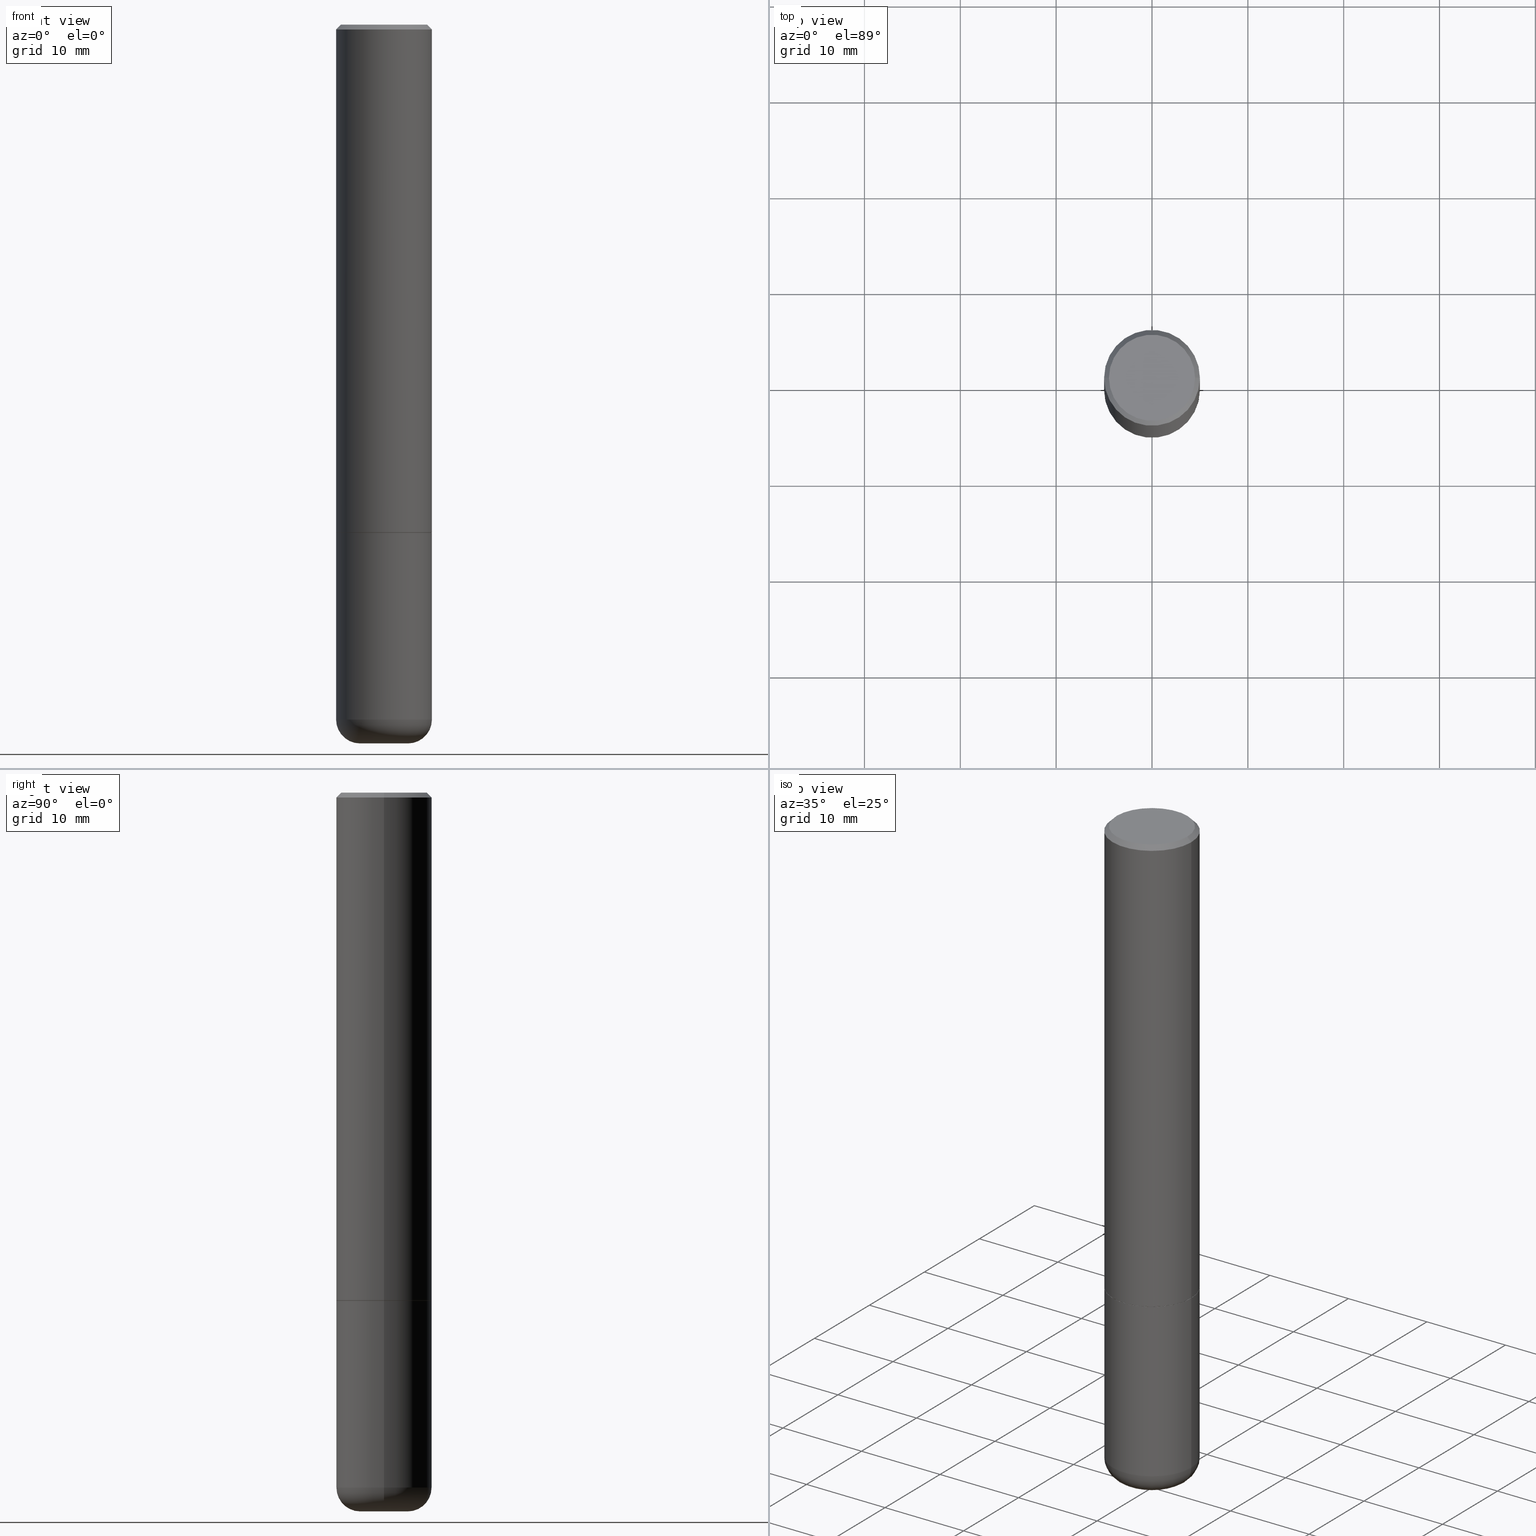
[diagram: canonical four-view strip — front | top / right | iso, engineering-drawing reading convention]
A machine part, canonical four-view strip (front | top / right | iso — engineering-drawing reading convention). The complete STEP part file that produces these views, byte-faithful:
ISO-10303-21;
HEADER;
FILE_DESCRIPTION (( 'STEP AP203' ),
    '1' );
FILE_NAME ('42677.STEP',
    '2024-03-04T00:58:42',
    ( '' ),
    ( '' ),
    'SwSTEP 2.0',
    'SolidWorks 2023',
    '' );
FILE_SCHEMA (( 'CONFIG_CONTROL_DESIGN' ));
ENDSEC;

DATA;
#1 = CARTESIAN_POINT ( 'NONE',  ( 0.000000000000000000, 0.000000000000000000, 0.000000000000000000 ) ) ;
#2 = CARTESIAN_POINT ( 'NONE',  ( 5.100514289060338336E-29, -7.282182628425147921E-15, -2.085699999999999665 ) ) ;
#3 = VERTEX_POINT ( 'NONE', #134 ) ;
#4 = CIRCLE ( 'NONE', #61, 0.1968500000000000250 ) ;
#5 = CARTESIAN_POINT ( 'NONE',  ( 0.09845000000000002360, -1.099711877295425267E-14, -2.952799999999999869 ) ) ;
#6 = ADVANCED_FACE ( 'NONE', ( #259 ), #313, .T. ) ;
#7 = DIRECTION ( 'NONE',  ( -2.445468806185136597E-29, 3.491481338843145583E-15, 1.000000000000000000 ) ) ;
#8 = CARTESIAN_POINT ( 'NONE',  ( 7.220980290903470182E-29, -1.030964609733603853E-14, -2.952799999999999869 ) ) ;
#9 = ADVANCED_FACE ( 'NONE', ( #344 ), #64, .F. ) ;
#10 = CONICAL_SURFACE ( 'NONE', #351, 0.1968500000000000527, 0.7853981633974477239 ) ;
#11 = DIRECTION ( 'NONE',  ( -2.445468806185136597E-29, 3.491481338843145583E-15, 1.000000000000000000 ) ) ;
#12 = ADVANCED_FACE ( 'NONE', ( #133 ), #412, .T. ) ;
#13 = DIRECTION ( 'NONE',  ( -2.445468806185136877E-29, 3.491481338843145188E-15, 1.000000000000000000 ) ) ;
#14 = ORIENTED_EDGE ( 'NONE', *, *, #183, .T. ) ;
#15 = EDGE_CURVE ( 'NONE', #222, #354, #60, .T. ) ;
#16 = LINE ( 'NONE', #237, #17 ) ;
#17 = VECTOR ( 'NONE', #179, 39.37007874015748143 ) ;
#18 = ORIENTED_EDGE ( 'NONE', *, *, #345, .T. ) ;
#19 = DIRECTION ( 'NONE',  ( -2.445468806185136597E-29, 3.491481338843145583E-15, 1.000000000000000000 ) ) ;
#20 = CC_DESIGN_DATE_AND_TIME_ASSIGNMENT ( #195, #316, ( #112 ) ) ;
#21 = EDGE_LOOP ( 'NONE', ( #58, #299, #366, #115 ) ) ;
#22 = DIRECTION ( 'NONE',  ( 1.000000000000000000, -6.982962677686264344E-15, 4.883557194083112340E-29 ) ) ;
#23 = VERTEX_POINT ( 'NONE', #255 ) ;
#24 = DIRECTION ( 'NONE',  ( -1.000000000000000000, 6.982962677686265922E-15, -4.876176775795935793E-29 ) ) ;
#25 = ORIENTED_EDGE ( 'NONE', *, *, #249, .F. ) ;
#26 = VECTOR ( 'NONE', #362, 39.37007874015748143 ) ;
#27 = EDGE_CURVE ( 'NONE', #156, #123, #45, .T. ) ;
#28 = APPROVAL_ROLE ( '' ) ;
#29 = ORIENTED_EDGE ( 'NONE', *, *, #114, .F. ) ;
#30 = EDGE_LOOP ( 'NONE', ( #187, #280, #102, #152 ) ) ;
#31 = PERSON_AND_ORGANIZATION_ROLE ( 'creator' ) ;
#32 = ADVANCED_FACE ( 'NONE', ( #376 ), #253, .T. ) ;
#33 = DIRECTION ( 'NONE',  ( -2.445468806185136597E-29, 3.491481338843145583E-15, 1.000000000000000000 ) ) ;
#34 = CIRCLE ( 'NONE', #358, 0.09845000000000002360 ) ;
#35 = DIRECTION ( 'NONE',  ( 0.000000000000000000, 0.000000000000000000, 1.000000000000000000 ) ) ;
#36 = CARTESIAN_POINT ( 'NONE',  ( 0.09845000000000000973, -1.065355700921208656E-14, -2.854399999999999604 ) ) ;
#37 = APPLICATION_PROTOCOL_DEFINITION ( 'international standard', 'config_control_design', 1994, #140 ) ;
#38 = VERTEX_POINT ( 'NONE', #95 ) ;
#39 = DIRECTION ( 'NONE',  ( 1.000000000000000000, -6.982962677686268288E-15, 0.000000000000000000 ) ) ;
#40 = CIRCLE ( 'NONE', #371, 0.1768499999999998129 ) ;
#41 = LOCAL_TIME ( 19, 58, 42.00000000000000000, #346 ) ;
#42 = FACE_OUTER_BOUND ( 'NONE', #84, .T. ) ;
#43 = DIRECTION ( 'NONE',  ( 1.000000000000000000, -6.982962677686266711E-15, 4.870572768024644616E-29 ) ) ;
#44 = CARTESIAN_POINT ( 'NONE',  ( 1.234936949548814815E-15, 0.1768499999999998129, -5.128899187669496159E-16 ) ) ;
#45 = CIRCLE ( 'NONE', #296, 0.09840000000000009850 ) ;
#46 = PRODUCT_DEFINITION_FORMATION_WITH_SPECIFIED_SOURCE ( 'ANY', '', #135, .NOT_KNOWN. ) ;
#47 = DIRECTION ( 'NONE',  ( -1.000000000000000000, 6.982962677686266711E-15, 0.000000000000000000 ) ) ;
#48 = EDGE_CURVE ( 'NONE', #215, #123, #4, .T. ) ;
#49 = ORIENTED_EDGE ( 'NONE', *, *, #62, .T. ) ;
#50 = CARTESIAN_POINT ( 'NONE',  ( 4.890937612370283668E-31, -6.982962677686305168E-17, -0.02000000000000004205 ) ) ;
#51 = ORIENTED_EDGE ( 'NONE', *, *, #261, .T. ) ;
#52 = FACE_OUTER_BOUND ( 'NONE', #242, .T. ) ;
#53 = AXIS2_PLACEMENT_3D ( 'NONE', #8, #141, #265 ) ;
#54 = LOCAL_TIME ( 19, 58, 42.00000000000000000, #132 ) ;
#55 = EDGE_LOOP ( 'NONE', ( #14, #380 ) ) ;
#56 = VERTEX_POINT ( 'NONE', #162 ) ;
#57 = CARTESIAN_POINT ( 'NONE',  ( -0.1958499999999999963, -5.888777707429610958E-15, -2.086699999999999555 ) ) ;
#58 = ORIENTED_EDGE ( 'NONE', *, *, #394, .F. ) ;
#59 = DATE_AND_TIME ( #314, #302 ) ;
#60 = LINE ( 'NONE', #125, #128 ) ;
#61 = AXIS2_PLACEMENT_3D ( 'NONE', #98, #33, #350 ) ;
#62 = EDGE_CURVE ( 'NONE', #398, #3, #291, .T. ) ;
#63 = PERSON_AND_ORGANIZATION ( #245, #322 ) ;
#64 = PLANE ( 'NONE',  #238 ) ;
#65 = COORDINATED_UNIVERSAL_TIME_OFFSET ( 5, 0, .BEHIND. ) ;
#66 = ORIENTED_EDGE ( 'NONE', *, *, #205, .T. ) ;
#67 = CC_DESIGN_PERSON_AND_ORGANIZATION_ASSIGNMENT ( #383, #286, ( #46 ) ) ;
#68 = COORDINATED_UNIVERSAL_TIME_OFFSET ( 5, 0, .BEHIND. ) ;
#69 = ORIENTED_EDGE ( 'NONE', *, *, #168, .F. ) ;
#70 = AXIS2_PLACEMENT_3D ( 'NONE', #72, #157, #386 ) ;
#71 = PERSON_AND_ORGANIZATION ( #245, #322 ) ;
#72 = CARTESIAN_POINT ( 'NONE',  ( 5.102959757866523939E-29, -7.285674109763990928E-15, -2.086699999999999555 ) ) ;
#73 = FACE_OUTER_BOUND ( 'NONE', #118, .T. ) ;
#74 = EDGE_CURVE ( 'NONE', #178, #222, #143, .T. ) ;
#75 = CARTESIAN_POINT ( 'NONE',  ( 5.102959757866523939E-29, -7.285674109763990928E-15, -2.086699999999999999 ) ) ;
#76 = AXIS2_PLACEMENT_3D ( 'NONE', #185, #19, #155 ) ;
#77 = AXIS2_PLACEMENT_3D ( 'NONE', #50, #110, #333 ) ;
#78 = DIRECTION ( 'NONE',  ( 2.438088387897960049E-29, -3.491481338843145188E-15, -1.000000000000000000 ) ) ;
#79 = CARTESIAN_POINT ( 'NONE',  ( -5.114871930242576863E-45, 7.302681534864191472E-31, 2.091571120149201434E-16 ) ) ;
#80 = ADVANCED_BREP_SHAPE_REPRESENTATION ( '42677', ( #310, #180, #252 ), #260 ) ;
#81 = DIRECTION ( 'NONE',  ( 1.000000000000000000, -6.982962677686268288E-15, 0.000000000000000000 ) ) ;
#82 = AXIS2_PLACEMENT_3D ( 'NONE', #113, #88, #271 ) ;
#83 = CARTESIAN_POINT ( 'NONE',  ( 6.980346160374851918E-29, -9.966084333593872426E-15, -2.854399999999999604 ) ) ;
#84 = EDGE_LOOP ( 'NONE', ( #308, #150, #120, #375 ) ) ;
#85 = EDGE_CURVE ( 'NONE', #222, #178, #218, .T. ) ;
#86 = DIRECTION ( 'NONE',  ( 0.7071067811867165487, -2.468850131084027659E-15, 0.7071067811863784858 ) ) ;
#87 = ORIENTED_EDGE ( 'NONE', *, *, #389, .T. ) ;
#88 = DIRECTION ( 'NONE',  ( 2.445468806185136597E-29, -3.491481338843145583E-15, -1.000000000000000000 ) ) ;
#89 = CIRCLE ( 'NONE', #406, 0.1968500000000000527 ) ;
#90 = APPROVAL_PERSON_ORGANIZATION ( #63, #243, #28 ) ;
#91 = ORIENTED_EDGE ( 'NONE', *, *, #394, .T. ) ;
#92 = ORIENTED_EDGE ( 'NONE', *, *, #248, .T. ) ;
#93 = ORIENTED_EDGE ( 'NONE', *, *, #74, .F. ) ;
#94 = PERSON_AND_ORGANIZATION ( #245, #322 ) ;
#95 = CARTESIAN_POINT ( 'NONE',  ( -0.1968500000000000527, 1.304766576325678902E-15, -0.02000000000000004205 ) ) ;
#96 = ADVANCED_FACE ( 'NONE', ( #234 ), #324, .F. ) ;
#97 = APPROVAL_STATUS ( 'not_yet_approved' ) ;
#98 = CARTESIAN_POINT ( 'NONE',  ( 6.980346160374851918E-29, -9.966084333593872426E-15, -2.854399999999999604 ) ) ;
#99 = APPROVAL ( #101, 'UNSPECIFIED' ) ;
#100 = DIRECTION ( 'NONE',  ( -2.445468806185136597E-29, 3.491481338843145583E-15, 1.000000000000000000 ) ) ;
#101 = APPROVAL_STATUS ( 'not_yet_approved' ) ;
#102 = ORIENTED_EDGE ( 'NONE', *, *, #27, .T. ) ;
#103 = AXIS2_PLACEMENT_3D ( 'NONE', #336, #298, #212 ) ;
#104 = LINE ( 'NONE', #227, #26 ) ;
#105 = DIRECTION ( 'NONE',  ( -1.000000000000000000, 6.982962677686265922E-15, -4.876176775795935793E-29 ) ) ;
#106 = CARTESIAN_POINT ( 'NONE',  ( 0.1968500000000000527, -1.134068053669641403E-14, -2.854399999999999604 ) ) ;
#107 = TOROIDAL_SURFACE ( 'NONE', #407, 0.09845000000000000973, 0.09840000000000012625 ) ;
#108 = DIRECTION ( 'NONE',  ( 1.000000000000000000, -6.982962677686269077E-15, 0.000000000000000000 ) ) ;
#109 = DIRECTION ( 'NONE',  ( 1.000000000000000000, -6.982962677686264344E-15, 4.883557194083112340E-29 ) ) ;
#110 = DIRECTION ( 'NONE',  ( -2.445468806185136597E-29, 3.491481338843145583E-15, 1.000000000000000000 ) ) ;
#111 = AXIS2_PLACEMENT_3D ( 'NONE', #317, #287, #418 ) ;
#112 = SECURITY_CLASSIFICATION ( '', '', #374 ) ;
#113 = CARTESIAN_POINT ( 'NONE',  ( 4.890937612370283668E-31, -6.982962677686305168E-17, -0.02000000000000004205 ) ) ;
#114 = EDGE_CURVE ( 'NONE', #56, #329, #206, .T. ) ;
#115 = ORIENTED_EDGE ( 'NONE', *, *, #330, .F. ) ;
#116 = DIMENSIONAL_EXPONENTS ( 1.000000000000000000, 0.000000000000000000, 0.000000000000000000, 0.000000000000000000, 0.000000000000000000, 0.000000000000000000, 0.000000000000000000 ) ;
#117 = LENGTH_MEASURE_WITH_UNIT ( LENGTH_MEASURE( 0.02539999999999999897 ), #149 );
#118 = EDGE_LOOP ( 'NONE', ( #92, #153, #240, #347 ) ) ;
#119 = LINE ( 'NONE', #121, #194 ) ;
#120 = ORIENTED_EDGE ( 'NONE', *, *, #389, .F. ) ;
#121 = CARTESIAN_POINT ( 'NONE',  ( 0.1958499999999999963, -8.653287350188846522E-15, -2.086699999999999555 ) ) ;
#122 = AXIS2_PLACEMENT_3D ( 'NONE', #131, #100, #289 ) ;
#123 = VERTEX_POINT ( 'NONE', #106 ) ;
#124 = COORDINATED_UNIVERSAL_TIME_OFFSET ( 5, 0, .BEHIND. ) ;
#125 = CARTESIAN_POINT ( 'NONE',  ( 0.1968500000000001915, -1.374596203102542989E-15, 9.598753983154309266E-30 ) ) ;
#126 = APPROVAL_DATE_TIME ( #307, #99 ) ;
#127 = DIRECTION ( 'NONE',  ( 1.000000000000000000, -6.982962677686274599E-15, 0.000000000000000000 ) ) ;
#128 = VECTOR ( 'NONE', #250, 39.37007874015748143 ) ;
#129 = CC_DESIGN_APPROVAL ( #99, ( #46 ) ) ;
#130 = DATE_AND_TIME ( #283, #392 ) ;
#131 = CARTESIAN_POINT ( 'NONE',  ( 5.100514289060338336E-29, -7.282182628425147921E-15, -2.085699999999999665 ) ) ;
#132 = COORDINATED_UNIVERSAL_TIME_OFFSET ( 5, 0, .BEHIND. ) ;
#133 = FACE_OUTER_BOUND ( 'NONE', #337, .T. ) ;
#134 = CARTESIAN_POINT ( 'NONE',  ( -0.1968500000000000250, -7.227175846335174678E-15, -2.086699999999999999 ) ) ;
#135 = PRODUCT ( '42677', '42677', '', ( #349 ) ) ;
#136 = CC_DESIGN_APPROVAL ( #373, ( #202 ) ) ;
#137 = CC_DESIGN_PERSON_AND_ORGANIZATION_ASSIGNMENT ( #71, #352, ( #46 ) ) ;
#138 = DIRECTION ( 'NONE',  ( -2.445468806185136877E-29, 3.491481338843145188E-15, 1.000000000000000000 ) ) ;
#139 = DIRECTION ( 'NONE',  ( 1.000000000000000000, -6.982962677686265922E-15, 4.876176775795935793E-29 ) ) ;
#140 = APPLICATION_CONTEXT ( 'configuration controlled 3d designs of mechanical parts and assemblies' ) ;
#141 = DIRECTION ( 'NONE',  ( -2.445468806185136597E-29, 3.491481338843145583E-15, 1.000000000000000000 ) ) ;
#142 = UNCERTAINTY_MEASURE_WITH_UNIT (LENGTH_MEASURE( 1.000000000000000082E-05 ), #241, 'distance_accuracy_value', 'NONE');
#143 = CIRCLE ( 'NONE', #122, 0.1968500000000002748 ) ;
#144 = CYLINDRICAL_SURFACE ( 'NONE', #397, 0.1968500000000000250 ) ;
#145 = CARTESIAN_POINT ( 'NONE',  ( -0.1968500000000001915, 1.398703375343758577E-15, -9.682923725166790684E-30 ) ) ;
#146 = EDGE_CURVE ( 'NONE', #405, #156, #34, .T. ) ;
#147 = LINE ( 'NONE', #403, #378 ) ;
#148 = CONICAL_SURFACE ( 'NONE', #82, 0.1968500000000000527, 0.7853981633974477239 ) ;
#149 =( LENGTH_UNIT ( ) NAMED_UNIT ( * ) SI_UNIT ( $, .METRE. ) );
#150 = ORIENTED_EDGE ( 'NONE', *, *, #235, .T. ) ;
#151 = PLANE ( 'NONE',  #277 ) ;
#152 = ORIENTED_EDGE ( 'NONE', *, *, #48, .F. ) ;
#153 = ORIENTED_EDGE ( 'NONE', *, *, #319, .T. ) ;
#154 = AXIS2_PLACEMENT_3D ( 'NONE', #294, #388, #236 ) ;
#155 = DIRECTION ( 'NONE',  ( 1.000000000000000000, -6.982962677686267499E-15, 0.000000000000000000 ) ) ;
#156 = VERTEX_POINT ( 'NONE', #5 ) ;
#157 = DIRECTION ( 'NONE',  ( -2.445468806185136597E-29, 3.491481338843145583E-15, 1.000000000000000000 ) ) ;
#158 = ADVANCED_FACE ( 'NONE', ( #229 ), #144, .T. ) ;
#159 = DIRECTION ( 'NONE',  ( 1.000000000000000000, 0.000000000000000000, 0.000000000000000000 ) ) ;
#160 = VERTEX_POINT ( 'NONE', #361 ) ;
#161 = DATE_TIME_ROLE ( 'creation_date' ) ;
#162 = CARTESIAN_POINT ( 'NONE',  ( 0.1958499999999999963, -8.653287350188846522E-15, -2.086699999999999555 ) ) ;
#163 = CC_DESIGN_APPROVAL ( #243, ( #112 ) ) ;
#164 = APPROVAL_DATE_TIME ( #59, #373 ) ;
#165 = CARTESIAN_POINT ( 'NONE',  ( 0.000000000000000000, 0.000000000000000000, 0.000000000000000000 ) ) ;
#166 = ADVANCED_FACE ( 'NONE', ( #323 ), #203, .F. ) ;
#167 = ORIENTED_EDGE ( 'NONE', *, *, #205, .F. ) ;
#168 = EDGE_CURVE ( 'NONE', #329, #178, #104, .T. ) ;
#169 = CARTESIAN_POINT ( 'NONE',  ( -0.1968500000000002748, -2.277302752257245061E-15, -2.085699999999999665 ) ) ;
#170 = DIRECTION ( 'NONE',  ( 1.000000000000000000, -6.982962677686265922E-15, 4.876176775795935793E-29 ) ) ;
#171 = CC_DESIGN_PERSON_AND_ORGANIZATION_ASSIGNMENT ( #225, #31, ( #202 ) ) ;
#172 = LINE ( 'NONE', #145, #385 ) ;
#173 = CARTESIAN_POINT ( 'NONE',  ( 7.220980290903470182E-29, -1.030964609733603853E-14, -2.952799999999999869 ) ) ;
#174 = AXIS2_PLACEMENT_3D ( 'NONE', #176, #262, #39 ) ;
#175 = CIRCLE ( 'NONE', #270, 0.1768499999999998129 ) ;
#176 = CARTESIAN_POINT ( 'NONE',  ( 5.102959757866523939E-29, -7.285674109763990928E-15, -2.086699999999999555 ) ) ;
#177 =( NAMED_UNIT ( * ) SI_UNIT ( $, .STERADIAN. ) SOLID_ANGLE_UNIT ( ) );
#178 = VERTEX_POINT ( 'NONE', #169 ) ;
#179 = DIRECTION ( 'NONE',  ( -2.445468806185136877E-29, 3.491481338843145188E-15, 1.000000000000000000 ) ) ;
#180 = MANIFOLD_SOLID_BREP ( 'Body-Move/Copy2[2]', #404 ) ;
#181 = ORIENTED_EDGE ( 'NONE', *, *, #304, .T. ) ;
#182 = TOROIDAL_SURFACE ( 'NONE', #246, 0.09845000000000000973, 0.09840000000000012625 ) ;
#183 = EDGE_CURVE ( 'NONE', #160, #23, #40, .T. ) ;
#184 = ORIENTED_EDGE ( 'NONE', *, *, #248, .F. ) ;
#185 = CARTESIAN_POINT ( 'NONE',  ( 6.980346160374851918E-29, -9.966084333593872426E-15, -2.854399999999999604 ) ) ;
#186 = EDGE_LOOP ( 'NONE', ( #181, #91, #400, #332 ) ) ;
#187 = ORIENTED_EDGE ( 'NONE', *, *, #319, .F. ) ;
#188 = ADVANCED_FACE ( 'NONE', ( #73 ), #182, .T. ) ;
#189 = ORIENTED_EDGE ( 'NONE', *, *, #345, .F. ) ;
#190 = ADVANCED_FACE ( 'NONE', ( #325 ), #10, .T. ) ;
#191 = CARTESIAN_POINT ( 'NONE',  ( 0.000000000000000000, 0.000000000000000000, 0.000000000000000000 ) ) ;
#192 = APPLICATION_PROTOCOL_DEFINITION ( 'international standard', 'config_control_design', 1994, #228 ) ;
#193 = CARTESIAN_POINT ( 'NONE',  ( 5.102959757866523939E-29, -7.285674109763990928E-15, -2.086699999999999999 ) ) ;
#194 = VECTOR ( 'NONE', #86, 39.37007874015748143 ) ;
#195 = DATE_AND_TIME ( #413, #41 ) ;
#196 = DIRECTION ( 'NONE',  ( 1.000000000000000000, -6.982962677686265922E-15, 4.876176775795935793E-29 ) ) ;
#197 = DIRECTION ( 'NONE',  ( 2.445468806185136597E-29, -3.491481338843145583E-15, -1.000000000000000000 ) ) ;
#198 = CARTESIAN_POINT ( 'NONE',  ( 6.980346160374851918E-29, -9.966084333593872426E-15, -2.854399999999999604 ) ) ;
#199 = CIRCLE ( 'NONE', #53, 0.09845000000000002360 ) ;
#200 = EDGE_CURVE ( 'NONE', #23, #160, #175, .T. ) ;
#201 = DIRECTION ( 'NONE',  ( 1.000000000000000000, -6.982962677686273021E-15, 0.000000000000000000 ) ) ;
#202 = PRODUCT_DEFINITION ( 'UNKNOWN', '', #46, #372 ) ;
#203 = PLANE ( 'NONE',  #326 ) ;
#204 = CARTESIAN_POINT ( 'NONE',  ( 4.890937612370283668E-31, -6.982962677686305168E-17, -0.02000000000000004205 ) ) ;
#205 = EDGE_CURVE ( 'NONE', #329, #56, #415, .T. ) ;
#206 = CIRCLE ( 'NONE', #306, 0.1958499999999999963 ) ;
#207 = FACE_OUTER_BOUND ( 'NONE', #341, .T. ) ;
#208 = ORIENTED_EDGE ( 'NONE', *, *, #15, .T. ) ;
#209 = CARTESIAN_POINT ( 'NONE',  ( 5.102959757866523939E-29, -7.285674109763990928E-15, -2.086699999999999999 ) ) ;
#210 = AXIS2_PLACEMENT_3D ( 'NONE', #209, #401, #328 ) ;
#211 = APPROVAL_PERSON_ORGANIZATION ( #281, #373, #379 ) ;
#212 = DIRECTION ( 'NONE',  ( 1.000000000000000000, -6.982962677686268288E-15, 0.000000000000000000 ) ) ;
#213 = EDGE_LOOP ( 'NONE', ( #69, #66, #51, #93 ) ) ;
#214 = DIRECTION ( 'NONE',  ( 0.7071067811865471286, -7.319954787623254468E-15, -0.7071067811865479058 ) ) ;
#215 = VERTEX_POINT ( 'NONE', #263 ) ;
#216 = DIRECTION ( 'NONE',  ( 1.000000000000000000, -6.982962677686266711E-15, 4.876176775795935793E-29 ) ) ;
#217 = ADVANCED_FACE ( 'NONE', ( #42 ), #293, .T. ) ;
#218 = CIRCLE ( 'NONE', #342, 0.1968500000000002748 ) ;
#219 = PERSON_AND_ORGANIZATION_ROLE ( 'design_owner' ) ;
#220 = ORIENTED_EDGE ( 'NONE', *, *, #183, .F. ) ;
#221 = CALENDAR_DATE ( 2024, 3, 3 ) ;
#222 = VERTEX_POINT ( 'NONE', #297 ) ;
#223 = DIRECTION ( 'NONE',  ( -1.000000000000000000, 6.982962677686265922E-15, -4.876176775795935793E-29 ) ) ;
#224 = CLOSED_SHELL ( 'NONE', ( #32, #188, #9, #158, #264, #353 ) ) ;
#225 = PERSON_AND_ORGANIZATION ( #245, #322 ) ;
#226 = ORIENTED_EDGE ( 'NONE', *, *, #377, .T. ) ;
#227 = CARTESIAN_POINT ( 'NONE',  ( -0.1958499999999999963, -5.894076161777833360E-15, -2.086699999999999555 ) ) ;
#228 = APPLICATION_CONTEXT ( 'configuration controlled 3d designs of mechanical parts and assemblies' ) ;
#229 = FACE_OUTER_BOUND ( 'NONE', #21, .T. ) ;
#230 = EDGE_CURVE ( 'NONE', #123, #398, #359, .T. ) ;
#231 = CARTESIAN_POINT ( 'NONE',  ( 0.1968500000000000250, -1.374596203102541608E-15, 9.598753983154300858E-30 ) ) ;
#232 = VECTOR ( 'NONE', #13, 39.37007874015748143 ) ;
#233 = CC_DESIGN_SECURITY_CLASSIFICATION ( #112, ( #46 ) ) ;
#234 = FACE_OUTER_BOUND ( 'NONE', #55, .T. ) ;
#235 = EDGE_CURVE ( 'NONE', #178, #38, #172, .T. ) ;
#236 = DIRECTION ( 'NONE',  ( 1.000000000000000000, -6.982962677686266711E-15, 4.876176775795935793E-29 ) ) ;
#237 = CARTESIAN_POINT ( 'NONE',  ( -0.1968500000000000250, 1.398703375343757393E-15, -9.682923725166783677E-30 ) ) ;
#238 = AXIS2_PLACEMENT_3D ( 'NONE', #193, #312, #223 ) ;
#239 = DIRECTION ( 'NONE',  ( 1.000000000000000000, -6.982962677686266711E-15, 0.000000000000000000 ) ) ;
#240 = ORIENTED_EDGE ( 'NONE', *, *, #304, .F. ) ;
#241 =( CONVERSION_BASED_UNIT ( 'INCH', #117 ) LENGTH_UNIT ( ) NAMED_UNIT ( #116 ) );
#242 = EDGE_LOOP ( 'NONE', ( #184, #370 ) ) ;
#243 = APPROVAL ( #97, 'UNSPECIFIED' ) ;
#244 = CARTESIAN_POINT ( 'NONE',  ( 7.220980290903470182E-29, -1.030964609733603853E-14, -2.952799999999999869 ) ) ;
#245 = PERSON ( 'UNSPECIFIED', 'UNSPECIFIED', 'UNSPECIFIED', ('UNSPECIFIED'), ('UNSPECIFIED'), ('UNSPECIFIED') ) ;
#246 = AXIS2_PLACEMENT_3D ( 'NONE', #198, #393, #109 ) ;
#247 = CARTESIAN_POINT ( 'NONE',  ( -0.09845000000000000973, -9.266555010238054316E-15, -2.854399999999999604 ) ) ;
#248 = EDGE_CURVE ( 'NONE', #156, #405, #199, .T. ) ;
#249 = EDGE_CURVE ( 'NONE', #23, #354, #303, .T. ) ;
#250 = DIRECTION ( 'NONE',  ( -2.445468806185136877E-29, 3.491481338843145188E-15, 1.000000000000000000 ) ) ;
#251 = AXIS2_PLACEMENT_3D ( 'NONE', #165, #315, #216 ) ;
#252 = AXIS2_PLACEMENT_3D ( 'NONE', #1, #35, #159 ) ;
#253 = CYLINDRICAL_SURFACE ( 'NONE', #320, 0.1968500000000000250 ) ;
#254 = APPROVAL_STATUS ( 'not_yet_approved' ) ;
#255 = CARTESIAN_POINT ( 'NONE',  ( 0.1768499999999998129, -1.316798864272041352E-15, 2.091571120149290674E-16 ) ) ;
#256 = CALENDAR_DATE ( 2024, 3, 3 ) ;
#257 = EDGE_LOOP ( 'NONE', ( #29, #167 ) ) ;
#258 = AXIS2_PLACEMENT_3D ( 'NONE', #247, #338, #268 ) ;
#259 = FACE_OUTER_BOUND ( 'NONE', #213, .T. ) ;
#260 =( GEOMETRIC_REPRESENTATION_CONTEXT ( 3 ) GLOBAL_UNCERTAINTY_ASSIGNED_CONTEXT ( ( #142 ) ) GLOBAL_UNIT_ASSIGNED_CONTEXT ( ( #241, #367, #177 ) ) REPRESENTATION_CONTEXT ( 'NONE', 'WORKASPACE' ) );
#261 = EDGE_CURVE ( 'NONE', #56, #222, #119, .T. ) ;
#262 = DIRECTION ( 'NONE',  ( -2.445468806185136597E-29, 3.491481338843145583E-15, 1.000000000000000000 ) ) ;
#263 = CARTESIAN_POINT ( 'NONE',  ( -0.1968500000000000527, -8.567380958250117005E-15, -2.854399999999999604 ) ) ;
#264 = ADVANCED_FACE ( 'NONE', ( #273 ), #107, .T. ) ;
#265 = DIRECTION ( 'NONE',  ( 1.000000000000000000, -6.982962677686273021E-15, 0.000000000000000000 ) ) ;
#266 = AXIS2_PLACEMENT_3D ( 'NONE', #44, #78, #105 ) ;
#267 = CARTESIAN_POINT ( 'NONE',  ( 0.000000000000000000, 0.000000000000000000, 0.000000000000000000 ) ) ;
#268 = DIRECTION ( 'NONE',  ( -1.000000000000000000, 7.105427357601001859E-15, 0.000000000000000000 ) ) ;
#269 = EDGE_LOOP ( 'NONE', ( #309, #284, #87, #402 ) ) ;
#270 = AXIS2_PLACEMENT_3D ( 'NONE', #318, #7, #321 ) ;
#271 = DIRECTION ( 'NONE',  ( -1.000000000000000000, 6.982962677686266711E-15, 0.000000000000000000 ) ) ;
#272 = ORIENTED_EDGE ( 'NONE', *, *, #261, .F. ) ;
#273 = FACE_OUTER_BOUND ( 'NONE', #30, .T. ) ;
#274 = CC_DESIGN_PERSON_AND_ORGANIZATION_ASSIGNMENT ( #94, #219, ( #135 ) ) ;
#275 = ORIENTED_EDGE ( 'NONE', *, *, #74, .T. ) ;
#276 = DIRECTION ( 'NONE',  ( -2.445468806185136597E-29, 3.491481338843145583E-15, 1.000000000000000000 ) ) ;
#277 = AXIS2_PLACEMENT_3D ( 'NONE', #244, #369, #24 ) ;
#278 = CIRCLE ( 'NONE', #77, 0.1968500000000000527 ) ;
#279 = DATE_AND_TIME ( #221, #416 ) ;
#280 = ORIENTED_EDGE ( 'NONE', *, *, #146, .T. ) ;
#281 = PERSON_AND_ORGANIZATION ( #245, #322 ) ;
#282 = ORIENTED_EDGE ( 'NONE', *, *, #114, .T. ) ;
#283 = CALENDAR_DATE ( 2024, 3, 3 ) ;
#284 = ORIENTED_EDGE ( 'NONE', *, *, #249, .T. ) ;
#285 = VECTOR ( 'NONE', #214, 39.37007874015748143 ) ;
#286 = PERSON_AND_ORGANIZATION_ROLE ( 'creator' ) ;
#287 = DIRECTION ( 'NONE',  ( -2.445468806185136597E-29, 3.491481338843145583E-15, 1.000000000000000000 ) ) ;
#288 = APPROVAL_ROLE ( '' ) ;
#289 = DIRECTION ( 'NONE',  ( 1.000000000000000000, -6.982962677686269077E-15, 0.000000000000000000 ) ) ;
#290 = EDGE_LOOP ( 'NONE', ( #49, #339 ) ) ;
#291 = CIRCLE ( 'NONE', #111, 0.1968500000000000250 ) ;
#292 = CARTESIAN_POINT ( 'NONE',  ( 5.102959757866523939E-29, -7.285674109763990928E-15, -2.086699999999999555 ) ) ;
#293 = CYLINDRICAL_SURFACE ( 'NONE', #154, 0.1968500000000001915 ) ;
#294 = CARTESIAN_POINT ( 'NONE',  ( 0.000000000000000000, 0.000000000000000000, 0.000000000000000000 ) ) ;
#295 = DIRECTION ( 'NONE',  ( -2.445468806185136597E-29, 3.491481338843145583E-15, 1.000000000000000000 ) ) ;
#296 = AXIS2_PLACEMENT_3D ( 'NONE', #36, #414, #127 ) ;
#297 = CARTESIAN_POINT ( 'NONE',  ( 0.1968500000000002748, -8.656778831527692685E-15, -2.085699999999999665 ) ) ;
#298 = DIRECTION ( 'NONE',  ( -2.445468806185136597E-29, 3.491481338843145583E-15, 1.000000000000000000 ) ) ;
#299 = ORIENTED_EDGE ( 'NONE', *, *, #48, .T. ) ;
#300 = CARTESIAN_POINT ( 'NONE',  ( 0.1968500000000000250, -8.660270312866532536E-15, -2.086699999999999999 ) ) ;
#301 = CIRCLE ( 'NONE', #258, 0.09840000000000009850 ) ;
#302 = LOCAL_TIME ( 19, 58, 42.00000000000000000, #68 ) ;
#303 = LINE ( 'NONE', #365, #285 ) ;
#304 = EDGE_CURVE ( 'NONE', #123, #215, #335, .T. ) ;
#305 = DIRECTION ( 'NONE',  ( -2.445468806185136597E-29, 3.491481338843145583E-15, 1.000000000000000000 ) ) ;
#306 = AXIS2_PLACEMENT_3D ( 'NONE', #292, #355, #81 ) ;
#307 = DATE_AND_TIME ( #256, #54 ) ;
#308 = ORIENTED_EDGE ( 'NONE', *, *, #85, .T. ) ;
#309 = ORIENTED_EDGE ( 'NONE', *, *, #200, .F. ) ;
#310 = MANIFOLD_SOLID_BREP ( 'Body-Move/Copy2[1]', #224 ) ;
#311 = CC_DESIGN_DATE_AND_TIME_ASSIGNMENT ( #130, #161, ( #202 ) ) ;
#312 = DIRECTION ( 'NONE',  ( 2.438088387897960049E-29, -3.491481338843145188E-15, -1.000000000000000000 ) ) ;
#313 = CONICAL_SURFACE ( 'NONE', #70, 0.1958499999999999963, 0.7853981633976873100 ) ;
#314 = CALENDAR_DATE ( 2024, 3, 3 ) ;
#315 = DIRECTION ( 'NONE',  ( -2.445468806185136597E-29, 3.491481338843145583E-15, 1.000000000000000000 ) ) ;
#316 = DATE_TIME_ROLE ( 'classification_date' ) ;
#317 = CARTESIAN_POINT ( 'NONE',  ( 5.102959757866523939E-29, -7.285674109763990928E-15, -2.086699999999999999 ) ) ;
#318 = CARTESIAN_POINT ( 'NONE',  ( -5.114871930242576863E-45, 7.302681534864191472E-31, 2.091571120149201434E-16 ) ) ;
#319 = EDGE_CURVE ( 'NONE', #405, #215, #301, .T. ) ;
#320 = AXIS2_PLACEMENT_3D ( 'NONE', #191, #382, #196 ) ;
#321 = DIRECTION ( 'NONE',  ( 1.000000000000000000, -6.982962677686266711E-15, 4.870572768024644616E-29 ) ) ;
#322 = ORGANIZATION ( 'UNSPECIFIED', 'UNSPECIFIED', '' ) ;
#323 = FACE_OUTER_BOUND ( 'NONE', #257, .T. ) ;
#324 = PLANE ( 'NONE',  #266 ) ;
#325 = FACE_OUTER_BOUND ( 'NONE', #269, .T. ) ;
#326 = AXIS2_PLACEMENT_3D ( 'NONE', #75, #391, #170 ) ;
#327 = APPROVAL_PERSON_ORGANIZATION ( #411, #99, #288 ) ;
#328 = DIRECTION ( 'NONE',  ( 1.000000000000000000, -6.982962677686267499E-15, 0.000000000000000000 ) ) ;
#329 = VERTEX_POINT ( 'NONE', #57 ) ;
#330 = EDGE_CURVE ( 'NONE', #3, #398, #390, .T. ) ;
#331 = FACE_OUTER_BOUND ( 'NONE', #384, .T. ) ;
#332 = ORIENTED_EDGE ( 'NONE', *, *, #230, .F. ) ;
#333 = DIRECTION ( 'NONE',  ( 1.000000000000000000, -6.982962677686266711E-15, 0.000000000000000000 ) ) ;
#334 = ORIENTED_EDGE ( 'NONE', *, *, #85, .F. ) ;
#335 = CIRCLE ( 'NONE', #76, 0.1968500000000000250 ) ;
#336 = CARTESIAN_POINT ( 'NONE',  ( 5.102959757866523939E-29, -7.285674109763990928E-15, -2.086699999999999555 ) ) ;
#337 = EDGE_LOOP ( 'NONE', ( #368, #275, #208, #189 ) ) ;
#338 = DIRECTION ( 'NONE',  ( 7.105427357601001859E-15, 1.000000000000000000, -3.491481338843145583E-15 ) ) ;
#339 = ORIENTED_EDGE ( 'NONE', *, *, #330, .T. ) ;
#340 = PERSON_AND_ORGANIZATION ( #245, #322 ) ;
#341 = EDGE_LOOP ( 'NONE', ( #282, #410, #334, #272 ) ) ;
#342 = AXIS2_PLACEMENT_3D ( 'NONE', #2, #387, #108 ) ;
#343 = PERSON_AND_ORGANIZATION_ROLE ( 'classification_officer' ) ;
#344 = FACE_OUTER_BOUND ( 'NONE', #290, .T. ) ;
#345 = EDGE_CURVE ( 'NONE', #38, #354, #89, .T. ) ;
#346 = COORDINATED_UNIVERSAL_TIME_OFFSET ( 5, 0, .BEHIND. ) ;
#347 = ORIENTED_EDGE ( 'NONE', *, *, #27, .F. ) ;
#348 = ADVANCED_FACE ( 'NONE', ( #207 ), #408, .T. ) ;
#349 = MECHANICAL_CONTEXT ( 'NONE', #140, 'mechanical' ) ;
#350 = DIRECTION ( 'NONE',  ( 1.000000000000000000, -6.982962677686267499E-15, 0.000000000000000000 ) ) ;
#351 = AXIS2_PLACEMENT_3D ( 'NONE', #204, #197, #47 ) ;
#352 = PERSON_AND_ORGANIZATION_ROLE ( 'design_supplier' ) ;
#353 = ADVANCED_FACE ( 'NONE', ( #52 ), #151, .T. ) ;
#354 = VERTEX_POINT ( 'NONE', #395 ) ;
#355 = DIRECTION ( 'NONE',  ( -2.445468806185136597E-29, 3.491481338843145583E-15, 1.000000000000000000 ) ) ;
#356 = CC_DESIGN_PERSON_AND_ORGANIZATION_ASSIGNMENT ( #340, #343, ( #112 ) ) ;
#357 = DIRECTION ( 'NONE',  ( -2.445468806185136597E-29, 3.491481338843145583E-15, 1.000000000000000000 ) ) ;
#358 = AXIS2_PLACEMENT_3D ( 'NONE', #173, #295, #201 ) ;
#359 = LINE ( 'NONE', #231, #232 ) ;
#360 = PRODUCT_RELATED_PRODUCT_CATEGORY ( 'detail', '', ( #135 ) ) ;
#361 = CARTESIAN_POINT ( 'NONE',  ( -0.1768499999999998129, 1.269851762937247450E-15, 2.091571120149113920E-16 ) ) ;
#362 = DIRECTION ( 'NONE',  ( -0.7071067811867165487, 7.493145998870964739E-15, 0.7071067811863784858 ) ) ;
#363 = CARTESIAN_POINT ( 'NONE',  ( -0.09845000000000002360, -9.088748866115166345E-15, -2.952799999999999869 ) ) ;
#364 = ADVANCED_FACE ( 'NONE', ( #331 ), #148, .T. ) ;
#365 = CARTESIAN_POINT ( 'NONE',  ( 0.1968500000000000527, -1.420318657638189516E-15, -0.02000000000000004205 ) ) ;
#366 = ORIENTED_EDGE ( 'NONE', *, *, #230, .T. ) ;
#367 =( NAMED_UNIT ( * ) PLANE_ANGLE_UNIT ( ) SI_UNIT ( $, .RADIAN. ) );
#368 = ORIENTED_EDGE ( 'NONE', *, *, #235, .F. ) ;
#369 = DIRECTION ( 'NONE',  ( 2.438088387897960049E-29, -3.491481338843145188E-15, -1.000000000000000000 ) ) ;
#370 = ORIENTED_EDGE ( 'NONE', *, *, #146, .F. ) ;
#371 = AXIS2_PLACEMENT_3D ( 'NONE', #79, #11, #43 ) ;
#372 = DESIGN_CONTEXT ( 'detailed design', #228, 'design' ) ;
#373 = APPROVAL ( #254, 'UNSPECIFIED' ) ;
#374 = SECURITY_CLASSIFICATION_LEVEL ( 'unclassified' ) ;
#375 = ORIENTED_EDGE ( 'NONE', *, *, #15, .F. ) ;
#376 = FACE_OUTER_BOUND ( 'NONE', #186, .T. ) ;
#377 = EDGE_CURVE ( 'NONE', #160, #38, #147, .T. ) ;
#378 = VECTOR ( 'NONE', #399, 39.37007874015748143 ) ;
#379 = APPROVAL_ROLE ( '' ) ;
#380 = ORIENTED_EDGE ( 'NONE', *, *, #200, .T. ) ;
#381 = PRODUCT_DEFINITION_SHAPE ( 'NONE', 'NONE',  #202 ) ;
#382 = DIRECTION ( 'NONE',  ( -2.445468806185136597E-29, 3.491481338843145583E-15, 1.000000000000000000 ) ) ;
#383 = PERSON_AND_ORGANIZATION ( #245, #322 ) ;
#384 = EDGE_LOOP ( 'NONE', ( #25, #220, #226, #18 ) ) ;
#385 = VECTOR ( 'NONE', #138, 39.37007874015748143 ) ;
#386 = DIRECTION ( 'NONE',  ( 1.000000000000000000, -6.982962677686268288E-15, 0.000000000000000000 ) ) ;
#387 = DIRECTION ( 'NONE',  ( -2.445468806185136597E-29, 3.491481338843145583E-15, 1.000000000000000000 ) ) ;
#388 = DIRECTION ( 'NONE',  ( -2.445468806185136597E-29, 3.491481338843145583E-15, 1.000000000000000000 ) ) ;
#389 = EDGE_CURVE ( 'NONE', #354, #38, #278, .T. ) ;
#390 = CIRCLE ( 'NONE', #210, 0.1968500000000000250 ) ;
#391 = DIRECTION ( 'NONE',  ( -2.438088387897960049E-29, 3.491481338843145188E-15, 1.000000000000000000 ) ) ;
#392 = LOCAL_TIME ( 19, 58, 42.00000000000000000, #65 ) ;
#393 = DIRECTION ( 'NONE',  ( -2.445468806185136597E-29, 3.491481338843145583E-15, 1.000000000000000000 ) ) ;
#394 = EDGE_CURVE ( 'NONE', #215, #3, #16, .T. ) ;
#395 = CARTESIAN_POINT ( 'NONE',  ( 0.1968500000000000527, -1.420318657638189516E-15, -0.02000000000000004205 ) ) ;
#396 = CARTESIAN_POINT ( 'NONE',  ( 4.890937612370283668E-31, -6.982962677686305168E-17, -0.02000000000000004205 ) ) ;
#397 = AXIS2_PLACEMENT_3D ( 'NONE', #267, #357, #139 ) ;
#398 = VERTEX_POINT ( 'NONE', #300 ) ;
#399 = DIRECTION ( 'NONE',  ( -0.7071067811865471286, 2.468850131082252722E-15, -0.7071067811865479058 ) ) ;
#400 = ORIENTED_EDGE ( 'NONE', *, *, #62, .F. ) ;
#401 = DIRECTION ( 'NONE',  ( -2.445468806185136597E-29, 3.491481338843145583E-15, 1.000000000000000000 ) ) ;
#402 = ORIENTED_EDGE ( 'NONE', *, *, #377, .F. ) ;
#403 = CARTESIAN_POINT ( 'NONE',  ( -0.1968500000000000527, 1.304766576325678902E-15, -0.02000000000000004205 ) ) ;
#404 = CLOSED_SHELL ( 'NONE', ( #348, #217, #190, #364, #12, #6, #166, #96 ) ) ;
#405 = VERTEX_POINT ( 'NONE', #363 ) ;
#406 = AXIS2_PLACEMENT_3D ( 'NONE', #396, #305, #239 ) ;
#407 = AXIS2_PLACEMENT_3D ( 'NONE', #83, #276, #22 ) ;
#408 = CONICAL_SURFACE ( 'NONE', #103, 0.1958499999999999963, 0.7853981633976873100 ) ;
#409 = SHAPE_DEFINITION_REPRESENTATION ( #381, #80 ) ;
#410 = ORIENTED_EDGE ( 'NONE', *, *, #168, .T. ) ;
#411 = PERSON_AND_ORGANIZATION ( #245, #322 ) ;
#412 = CYLINDRICAL_SURFACE ( 'NONE', #251, 0.1968500000000001915 ) ;
#413 = CALENDAR_DATE ( 2024, 3, 3 ) ;
#414 = DIRECTION ( 'NONE',  ( -6.982962677686266711E-15, -1.000000000000000000, 3.491481338843145583E-15 ) ) ;
#415 = CIRCLE ( 'NONE', #174, 0.1958499999999999963 ) ;
#416 = LOCAL_TIME ( 19, 58, 42.00000000000000000, #124 ) ;
#417 = APPROVAL_DATE_TIME ( #279, #243 ) ;
#418 = DIRECTION ( 'NONE',  ( 1.000000000000000000, -6.982962677686267499E-15, 0.000000000000000000 ) ) ;
ENDSEC;
END-ISO-10303-21;
